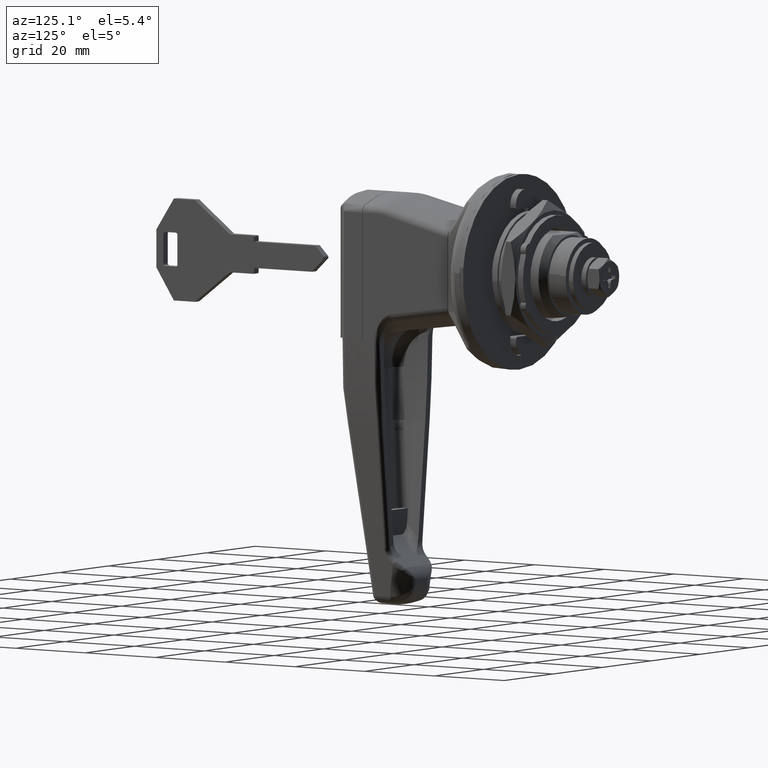
[diagram: clean part render]
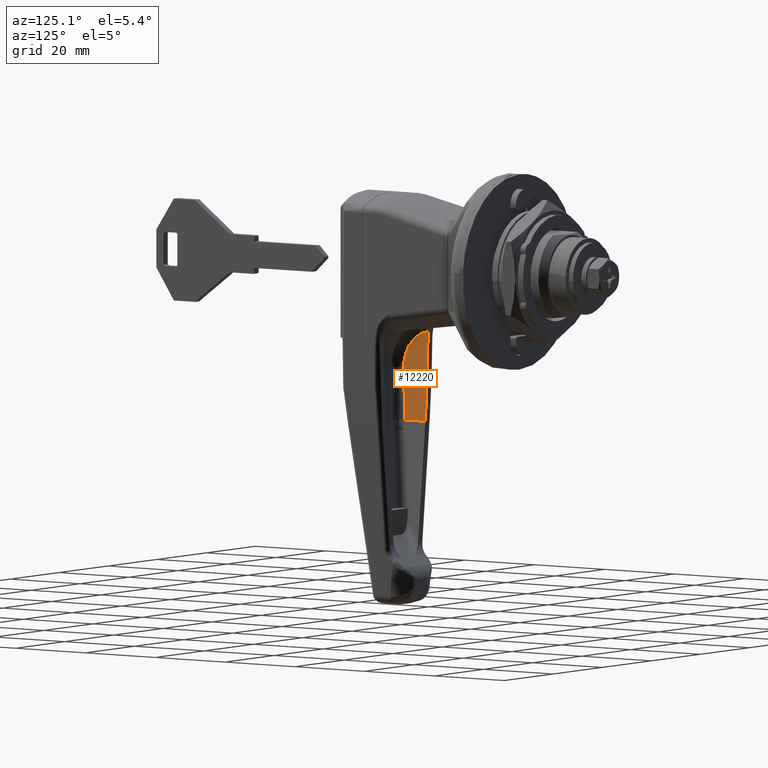
[diagram: same view with one face highlighted and labeled with its STEP entity id]
A machine part, auxiliary view. The second image highlights one B-rep face of the part: STEP entity #12220.
In plain terms, the highlighted face is a freeform B-spline surface patch.
Its self-contained STEP definition (entity closure, byte-faithful):
#10047=CARTESIAN_POINT('',(-32.500000000000000,8.995043839164191,-18.399163666846050));
#10048=VERTEX_POINT('',#10047);
#10079=CARTESIAN_POINT('',(-32.167834806088813,8.999336015959440,-16.487873789841451));
#10080=VERTEX_POINT('',#10079);
#10120=CARTESIAN_POINT('',(-32.500000000000000,8.995043839164140,-18.399163666846050));
#10121=CARTESIAN_POINT('',(-32.500000000000007,8.997368747321970,-18.070997742135120));
#10122=CARTESIAN_POINT('',(-32.471682462862539,8.998841376480948,-17.747751239744879));
#10123=CARTESIAN_POINT('',(-32.361022670698027,9.000225911087050,-17.110643745873830));
#10124=CARTESIAN_POINT('',(-32.278686459118973,9.000137030493006,-16.796781702330140));
#10125=CARTESIAN_POINT('',(-32.167834806088813,8.999336015959440,-16.487873789841451));
#10126=B_SPLINE_CURVE_WITH_KNOTS('',3,(#10120,#10121,#10122,#10123,#10124,#10125),.UNSPECIFIED.,.F.,.U.,(4,2,4),(0.0,0.500000000000000,1.0),.UNSPECIFIED.);
#10127=EDGE_CURVE('',#10048,#10080,#10126,.T.);
#11466=CARTESIAN_POINT('',(-38.438559678793048,7.927700999999670,-37.552573999999836));
#11467=VERTEX_POINT('',#11466);
#11533=CARTESIAN_POINT('',(-39.333117843114252,8.831410608772570,-25.158700089596849));
#11534=VERTEX_POINT('',#11533);
#11562=CARTESIAN_POINT('',(-38.438559678793048,7.927700999999670,-37.552573999999836));
#11563=CARTESIAN_POINT('',(-39.078916940816228,8.574609185735049,-31.369859526498914));
#11564=CARTESIAN_POINT('',(-39.333117843114252,8.831410608772570,-25.158700089596849));
#11572=(BOUNDED_CURVE()B_SPLINE_CURVE(2,(#11562,#11563,#11564),.UNSPECIFIED.,.F.,.U.)CURVE()GEOMETRIC_REPRESENTATION_ITEM()QUASI_UNIFORM_CURVE()RATIONAL_B_SPLINE_CURVE((1.0,0.999505005508692,1.0))REPRESENTATION_ITEM(''));
#11573=EDGE_CURVE('',#11467,#11534,#11572,.T.);
#11726=CARTESIAN_POINT('',(-32.372290811278347,8.999405037536159,-16.515221886609702));
#11727=VERTEX_POINT('',#11726);
#11728=CARTESIAN_POINT('',(-39.333117843114252,8.831410608772570,-25.158700089596849));
#11729=CARTESIAN_POINT('',(-39.354022345330279,8.852528967788764,-24.647918282612480));
#11730=CARTESIAN_POINT('',(-39.329938860292302,8.871430072570913,-24.142736299436478));
#11731=CARTESIAN_POINT('',(-39.229069595351334,8.896660960862892,-23.393024650814120));
#11732=CARTESIAN_POINT('',(-39.184586276532983,8.904550608465367,-23.144473079537960));
#11733=CARTESIAN_POINT('',(-39.101297024467222,8.915626448605197,-22.773709508937749));
#11734=CARTESIAN_POINT('',(-39.070768975520600,8.919191941075850,-22.650466152406992));
#11735=CARTESIAN_POINT('',(-39.004083210076338,8.926073597521905,-22.404681144406780));
#11736=CARTESIAN_POINT('',(-38.967824033306186,8.929397277784661,-22.281842261186959));
#11737=CARTESIAN_POINT('',(-38.773769954486212,8.945272924494539,-21.674449062075769));
#11738=CARTESIAN_POINT('',(-38.577893348799087,8.955655958298603,-21.208671019415249));
#11739=CARTESIAN_POINT('',(-38.224215321060321,8.968403539665902,-20.539682035659940));
#11740=CARTESIAN_POINT('',(-38.096282910687947,8.972180036701918,-20.321663092388409));
#11741=CARTESIAN_POINT('',(-37.888875353108411,8.977207230843083,-20.002325405979992));
#11742=CARTESIAN_POINT('',(-37.817150472394303,8.978776658190544,-19.897163386160042));
#11743=CARTESIAN_POINT('',(-37.668392775889103,8.981714412481189,-19.689471845703149));
#11744=CARTESIAN_POINT('',(-37.591499017024510,8.983079194246789,-19.587164582655021));
#11745=CARTESIAN_POINT('',(-37.197688243970369,8.989372393371060,-19.087488820201330));
#11746=CARTESIAN_POINT('',(-36.850213901238178,8.992777060359353,-18.721458023248140));
#11747=CARTESIAN_POINT('',(-36.280297257759763,8.996282858850256,-18.223053196578689));
#11748=CARTESIAN_POINT('',(-36.082156391600350,8.997182356238142,-18.065411640339619));
#11749=CARTESIAN_POINT('',(-35.823846424676290,8.998045583617609,-17.879417102320652));
#11750=CARTESIAN_POINT('',(-35.771651532273260,8.998205148276561,-17.842772317925320));
#11751=CARTESIAN_POINT('',(-35.666180325646117,8.998499909290960,-17.770607260798759));
#11752=CARTESIAN_POINT('',(-35.612863411074457,8.998635164567299,-17.735063162958092));
#11753=CARTESIAN_POINT('',(-35.452173056057738,8.999005137399148,-17.630720714068740));
#11754=CARTESIAN_POINT('',(-35.343788652369007,8.999204969085902,-17.564018892623530));
#11755=CARTESIAN_POINT('',(-34.795663563387563,9.000013808359727,-17.244616870731988));
#11756=CARTESIAN_POINT('',(-34.337477625090948,9.000066358836126,-17.033865060055700));
#11757=CARTESIAN_POINT('',(-33.620289174542933,8.999901114629459,-16.785758644675159));
#11758=CARTESIAN_POINT('',(-33.376043256440333,8.999802437811610,-16.714425651015731));
#11759=CARTESIAN_POINT('',(-32.877716741301263,8.999595366473221,-16.595839434427070));
#11760=CARTESIAN_POINT('',(-32.626191247687188,8.999488390238481,-16.549179915365119));
#11761=CARTESIAN_POINT('',(-32.372290811278297,8.999405037536169,-16.515221886609702));
#11762=B_SPLINE_CURVE_WITH_KNOTS('',3,(#11728,#11729,#11730,#11731,#11732,#11733,#11734,#11735,#11736,#11737,#11738,#11739,#11740,#11741,#11742,#11743,#11744,#11745,#11746,#11747,#11748,#11749,#11750,#11751,#11752,#11753,#11754,#11755,#11756,#11757,#11758,#11759,#11760,#11761),.UNSPECIFIED.,.F.,.U.,(4,2,2,2,2,2,2,2,2,2,2,2,2,2,2,2,4),(0.0,0.125000000000005,0.187500000000007,0.218750000000008,0.250000000000009,0.375000000000011,0.437500000000012,0.468750000000012,0.500000000000012,0.625000000000010,0.687500000000009,0.703125000000009,0.718750000000009,0.750000000000008,0.875000000000003,0.937500000000002,1.0),.UNSPECIFIED.);
#11763=EDGE_CURVE('',#11534,#11727,#11762,.T.);
#11844=CARTESIAN_POINT('',(-32.372290811278347,8.999405037536159,-16.515221886609702));
#11845=CARTESIAN_POINT('',(-32.304138778856867,8.999382661957913,-16.506106082256501));
#11846=CARTESIAN_POINT('',(-32.235986777086460,8.999359654798107,-16.496990050253942));
#11847=CARTESIAN_POINT('',(-32.167834806088813,8.999336015959440,-16.487873789841451));
#11848=B_SPLINE_CURVE_WITH_KNOTS('',3,(#11844,#11845,#11846,#11847),.UNSPECIFIED.,.F.,.U.,(4,4),(0.0,0.000206276952688),.UNSPECIFIED.);
#11849=EDGE_CURVE('',#11727,#10080,#11848,.T.);
#12065=CARTESIAN_POINT('',(-32.500000000000000,7.927700999999670,-37.552573999999836));
#12066=VERTEX_POINT('',#12065);
#12072=CARTESIAN_POINT('',(-38.438559678793048,7.927700999999670,-37.552573999999836));
#12073=CARTESIAN_POINT('',(-32.500000000000000,7.927700999999670,-37.552573999999836));
#12074=QUASI_UNIFORM_CURVE('',1,(#12072,#12073),.UNSPECIFIED.,.F.,.U.);
#12075=EDGE_CURVE('',#11467,#12066,#12074,.T.);
#12186=CARTESIAN_POINT('',(-39.516014436494302,8.993799099337748,-15.434970508135439));
#12187=CARTESIAN_POINT('',(-31.984130315328667,8.993799099337748,-15.434970508135439));
#12188=CARTESIAN_POINT('',(-39.516014436494295,9.085861085223334,-27.052432951934623));
#12189=CARTESIAN_POINT('',(-31.984130315328667,9.085861085223334,-27.052432951934623));
#12190=CARTESIAN_POINT('',(-39.516014436494295,7.815219845264918,-38.600566129277475));
#12191=CARTESIAN_POINT('',(-31.984130315328667,7.815219845264918,-38.600566129277475));
#12199=(BOUNDED_SURFACE()B_SPLINE_SURFACE(1,2,((#12186,#12188,#12190),(#12187,#12189,#12191)),.UNSPECIFIED.,.F.,.F.,.U.)B_SPLINE_SURFACE_WITH_KNOTS((2,2),(3,3),(0.0,7.531884121165628),(7.161281737852097,30.378861275148392),.UNSPECIFIED.)GEOMETRIC_REPRESENTATION_ITEM()RATIONAL_B_SPLINE_SURFACE(((0.998275279495987,0.996010533909215,0.997189617418351),(0.998275279495987,0.996010533909215,0.997189617418351)))REPRESENTATION_ITEM('')SURFACE());
#12200=CARTESIAN_POINT('',(-32.500000000000000,7.927700999999670,-37.552573999999836));
#12201=CARTESIAN_POINT('',(-32.500000000000000,8.927013353029922,-28.001817137525901));
#12202=CARTESIAN_POINT('',(-32.500000000000000,8.995043839164191,-18.399163666846050));
#12210=(BOUNDED_CURVE()B_SPLINE_CURVE(2,(#12200,#12201,#12202),.UNSPECIFIED.,.F.,.U.)CURVE()GEOMETRIC_REPRESENTATION_ITEM()QUASI_UNIFORM_CURVE()RATIONAL_B_SPLINE_CURVE((1.0,0.998820030167785,1.0))REPRESENTATION_ITEM(''));
#12211=EDGE_CURVE('',#12066,#10048,#12210,.T.);
#12212=ORIENTED_EDGE('',*,*,#12211,.T.);
#12213=ORIENTED_EDGE('',*,*,#10127,.T.);
#12214=ORIENTED_EDGE('',*,*,#11849,.F.);
#12215=ORIENTED_EDGE('',*,*,#11763,.F.);
#12216=ORIENTED_EDGE('',*,*,#11573,.F.);
#12217=ORIENTED_EDGE('',*,*,#12075,.T.);
#12218=EDGE_LOOP('',(#12212,#12213,#12214,#12215,#12216,#12217));
#12219=FACE_OUTER_BOUND('',#12218,.T.);
#12220=ADVANCED_FACE('',(#12219),#12199,.F.);